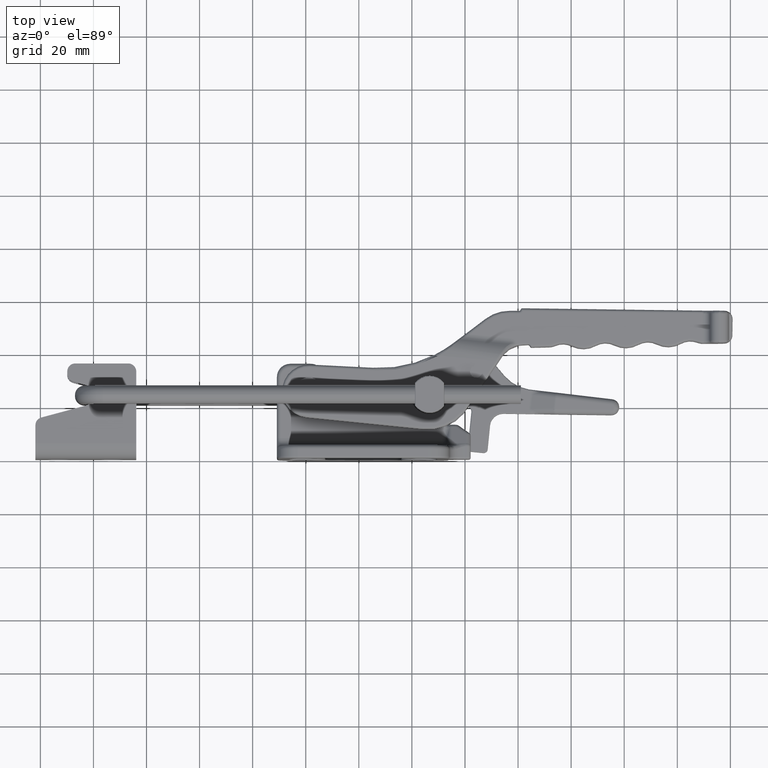
[diagram: clean part render]
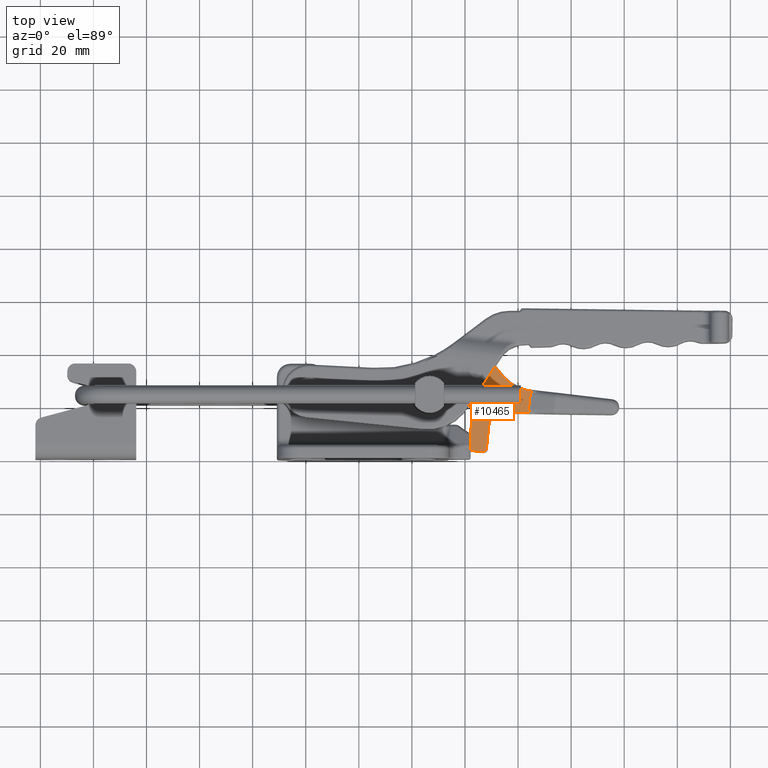
[diagram: same view with one face highlighted and labeled with its STEP entity id]
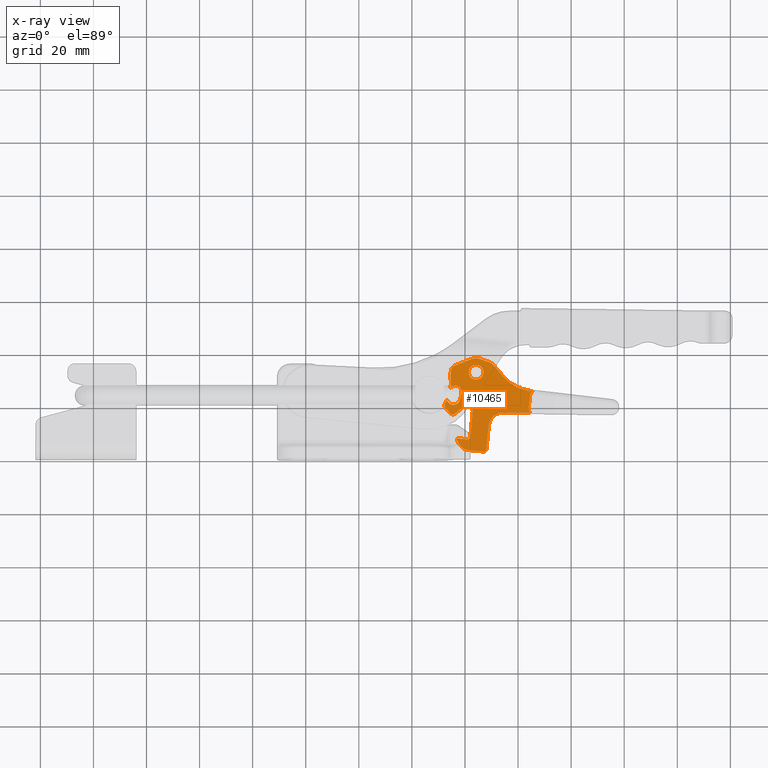
[diagram: x-ray of the same camera — body ghosted, the highlighted face saturated]
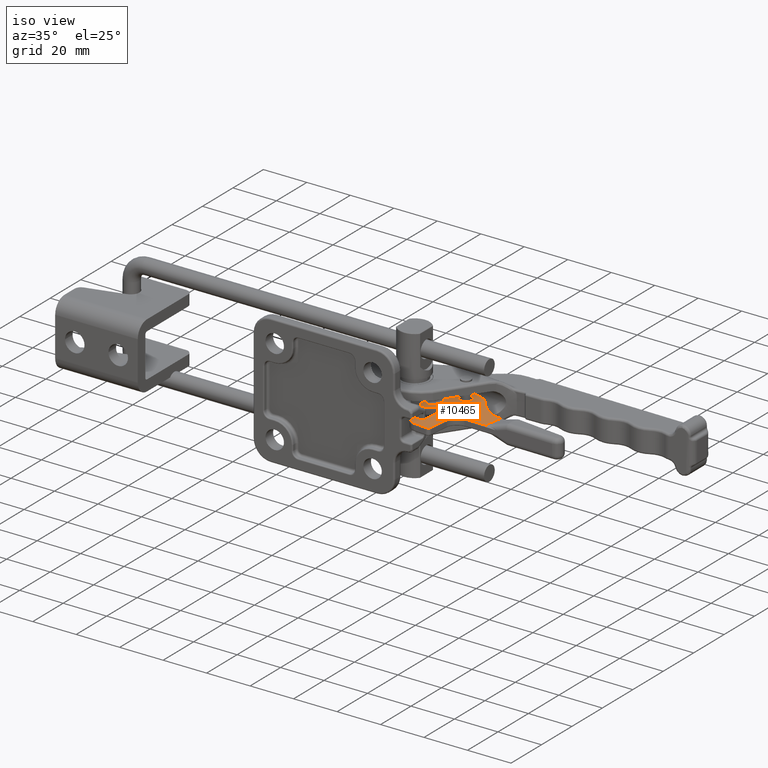
[diagram: same view with one face highlighted and labeled with its STEP entity id]
A machine part, top view. The second image highlights one B-rep face of the part: STEP entity #10465.
The next image is the same camera in x-ray: the body ghosted, the highlighted face saturated — about 0% of this face is hidden behind the body in this view.
A second angle (iso view) of the same face is appended — the face is thin or edge-on in the first view.
In plain terms, the highlighted planar face has unit normal (-0, 0, 1).
Its self-contained STEP definition (entity closure, byte-faithful):
#84=ELLIPSE('',#11455,39.974366171344,7.87577680387984);
#85=ELLIPSE('',#11457,26.0492224874494,6.37568065304871);
#588=FACE_BOUND('',#1887,.T.);
#700=PLANE('',#11454);
#1166=FACE_OUTER_BOUND('',#1886,.T.);
#1886=EDGE_LOOP('',(#7911,#7912,#7913,#7914,#7915,#7916,#7917,#7918,#7919,
#7920,#7921,#7922,#7923,#7924,#7925,#7926,#7927,#7928,#7929,#7930,#7931,
#7932,#7933,#7934,#7935,#7936,#7937,#7938,#7939,#7940,#7941,#7942,#7943,
#7944,#7945,#7946));
#1887=EDGE_LOOP('',(#7947));
#2642=LINE('',#19532,#3172);
#2643=LINE('',#19538,#3173);
#2644=LINE('',#19542,#3174);
#2645=LINE('',#19544,#3175);
#2646=LINE('',#19546,#3176);
#2647=LINE('',#19550,#3177);
#2648=LINE('',#19554,#3178);
#2649=LINE('',#19558,#3179);
#2650=LINE('',#19561,#3180);
#2651=LINE('',#19573,#3181);
#2652=LINE('',#19577,#3182);
#2653=LINE('',#19581,#3183);
#2654=LINE('',#19585,#3184);
#2655=LINE('',#19589,#3185);
#2656=LINE('',#19593,#3186);
#2657=LINE('',#19597,#3187);
#3172=VECTOR('',#13572,10.1783185368678);
#3173=VECTOR('',#13577,5.09127320528675);
#3174=VECTOR('',#13580,0.973094027685159);
#3175=VECTOR('',#13581,0.0559206611037311);
#3176=VECTOR('',#13582,0.671763259292169);
#3177=VECTOR('',#13585,5.45290311228631);
#3178=VECTOR('',#13588,2.68789228955338);
#3179=VECTOR('',#13591,6.43336957121639);
#3180=VECTOR('',#13594,2.12403256004115);
#3181=VECTOR('',#13605,2.51949169181848);
#3182=VECTOR('',#13608,3.99999999893659);
#3183=VECTOR('',#13611,9.1999999998699);
#3184=VECTOR('',#13614,3.36908525550465);
#3185=VECTOR('',#13617,1.50111069974441);
#3186=VECTOR('',#13620,5.78122320873808);
#3187=VECTOR('',#13623,8.99176692437496);
#3761=CIRCLE('',#11451,15.);
#3764=CIRCLE('',#11456,1.56259926742748);
#3765=CIRCLE('',#11458,15.5);
#3766=CIRCLE('',#11459,4.5);
#3767=CIRCLE('',#11460,5.292626146767);
#3768=CIRCLE('',#11461,2.5);
#3769=CIRCLE('',#11462,2.5);
#3770=CIRCLE('',#11463,19.5);
#3771=CIRCLE('',#11464,2.5);
#3772=CIRCLE('',#11465,15.);
#3773=CIRCLE('',#11466,1.5);
#3774=CIRCLE('',#11467,1.5);
#3775=CIRCLE('',#11468,2.15);
#3776=CIRCLE('',#11469,1.3);
#3777=CIRCLE('',#11470,0.2999999999972);
#3778=CIRCLE('',#11471,4.5);
#3779=CIRCLE('',#11472,1.);
#3780=CIRCLE('',#11473,5.5);
#3781=CIRCLE('',#11474,2.75);
#4560=VERTEX_POINT('',#19524);
#4561=VERTEX_POINT('',#19525);
#4562=VERTEX_POINT('',#19530);
#4563=VERTEX_POINT('',#19531);
#4564=VERTEX_POINT('',#19533);
#4565=VERTEX_POINT('',#19535);
#4566=VERTEX_POINT('',#19537);
#4567=VERTEX_POINT('',#19539);
#4568=VERTEX_POINT('',#19541);
#4569=VERTEX_POINT('',#19543);
#4570=VERTEX_POINT('',#19545);
#4571=VERTEX_POINT('',#19547);
#4572=VERTEX_POINT('',#19549);
#4573=VERTEX_POINT('',#19551);
#4574=VERTEX_POINT('',#19553);
#4575=VERTEX_POINT('',#19555);
#4576=VERTEX_POINT('',#19557);
#4577=VERTEX_POINT('',#19559);
#4578=VERTEX_POINT('',#19562);
#4579=VERTEX_POINT('',#19564);
#4580=VERTEX_POINT('',#19566);
#4581=VERTEX_POINT('',#19568);
#4582=VERTEX_POINT('',#19570);
#4583=VERTEX_POINT('',#19572);
#4584=VERTEX_POINT('',#19574);
#4585=VERTEX_POINT('',#19576);
#4586=VERTEX_POINT('',#19578);
#4587=VERTEX_POINT('',#19580);
#4588=VERTEX_POINT('',#19582);
#4589=VERTEX_POINT('',#19584);
#4590=VERTEX_POINT('',#19586);
#4591=VERTEX_POINT('',#19588);
#4592=VERTEX_POINT('',#19590);
#4593=VERTEX_POINT('',#19592);
#4594=VERTEX_POINT('',#19594);
#4595=VERTEX_POINT('',#19596);
#4596=VERTEX_POINT('',#19599);
#5761=EDGE_CURVE('',#4560,#4561,#3761,.T.);
#5764=EDGE_CURVE('',#4562,#4563,#2642,.T.);
#5765=EDGE_CURVE('',#4564,#4563,#84,.T.);
#5766=EDGE_CURVE('',#4564,#4565,#3764,.T.);
#5767=EDGE_CURVE('',#4565,#4566,#2643,.T.);
#5768=EDGE_CURVE('',#4566,#4567,#85,.T.);
#5769=EDGE_CURVE('',#4567,#4568,#2644,.T.);
#5770=EDGE_CURVE('',#4569,#4568,#2645,.T.);
#5771=EDGE_CURVE('',#4569,#4570,#2646,.T.);
#5772=EDGE_CURVE('',#4570,#4571,#3765,.T.);
#5773=EDGE_CURVE('',#4571,#4572,#2647,.T.);
#5774=EDGE_CURVE('',#4572,#4573,#3766,.T.);
#5775=EDGE_CURVE('',#4573,#4574,#2648,.T.);
#5776=EDGE_CURVE('',#4574,#4575,#3767,.T.);
#5777=EDGE_CURVE('',#4575,#4576,#2649,.T.);
#5778=EDGE_CURVE('',#4576,#4577,#3768,.T.);
#5779=EDGE_CURVE('',#4577,#4560,#2650,.T.);
#5780=EDGE_CURVE('',#4561,#4578,#3769,.T.);
#5781=EDGE_CURVE('',#4578,#4579,#3770,.T.);
#5782=EDGE_CURVE('',#4579,#4580,#3771,.T.);
#5783=EDGE_CURVE('',#4580,#4581,#3772,.T.);
#5784=EDGE_CURVE('',#4581,#4582,#3773,.T.);
#5785=EDGE_CURVE('',#4582,#4583,#2651,.T.);
#5786=EDGE_CURVE('',#4583,#4584,#3774,.T.);
#5787=EDGE_CURVE('',#4584,#4585,#2652,.T.);
#5788=EDGE_CURVE('',#4585,#4586,#3775,.T.);
#5789=EDGE_CURVE('',#4586,#4587,#2653,.T.);
#5790=EDGE_CURVE('',#4587,#4588,#3776,.T.);
#5791=EDGE_CURVE('',#4588,#4589,#2654,.T.);
#5792=EDGE_CURVE('',#4589,#4590,#3777,.T.);
#5793=EDGE_CURVE('',#4590,#4591,#2655,.T.);
#5794=EDGE_CURVE('',#4591,#4592,#3778,.T.);
#5795=EDGE_CURVE('',#4592,#4593,#2656,.T.);
#5796=EDGE_CURVE('',#4593,#4594,#3779,.T.);
#5797=EDGE_CURVE('',#4594,#4595,#2657,.T.);
#5798=EDGE_CURVE('',#4595,#4562,#3780,.T.);
#5799=EDGE_CURVE('',#4596,#4596,#3781,.T.);
#7911=ORIENTED_EDGE('',*,*,#5764,.T.);
#7912=ORIENTED_EDGE('',*,*,#5765,.F.);
#7913=ORIENTED_EDGE('',*,*,#5766,.T.);
#7914=ORIENTED_EDGE('',*,*,#5767,.T.);
#7915=ORIENTED_EDGE('',*,*,#5768,.T.);
#7916=ORIENTED_EDGE('',*,*,#5769,.T.);
#7917=ORIENTED_EDGE('',*,*,#5770,.F.);
#7918=ORIENTED_EDGE('',*,*,#5771,.T.);
#7919=ORIENTED_EDGE('',*,*,#5772,.T.);
#7920=ORIENTED_EDGE('',*,*,#5773,.T.);
#7921=ORIENTED_EDGE('',*,*,#5774,.T.);
#7922=ORIENTED_EDGE('',*,*,#5775,.T.);
#7923=ORIENTED_EDGE('',*,*,#5776,.T.);
#7924=ORIENTED_EDGE('',*,*,#5777,.T.);
#7925=ORIENTED_EDGE('',*,*,#5778,.T.);
#7926=ORIENTED_EDGE('',*,*,#5779,.T.);
#7927=ORIENTED_EDGE('',*,*,#5761,.T.);
#7928=ORIENTED_EDGE('',*,*,#5780,.T.);
#7929=ORIENTED_EDGE('',*,*,#5781,.T.);
#7930=ORIENTED_EDGE('',*,*,#5782,.T.);
#7931=ORIENTED_EDGE('',*,*,#5783,.T.);
#7932=ORIENTED_EDGE('',*,*,#5784,.T.);
#7933=ORIENTED_EDGE('',*,*,#5785,.T.);
#7934=ORIENTED_EDGE('',*,*,#5786,.T.);
#7935=ORIENTED_EDGE('',*,*,#5787,.T.);
#7936=ORIENTED_EDGE('',*,*,#5788,.T.);
#7937=ORIENTED_EDGE('',*,*,#5789,.T.);
#7938=ORIENTED_EDGE('',*,*,#5790,.T.);
#7939=ORIENTED_EDGE('',*,*,#5791,.T.);
#7940=ORIENTED_EDGE('',*,*,#5792,.T.);
#7941=ORIENTED_EDGE('',*,*,#5793,.T.);
#7942=ORIENTED_EDGE('',*,*,#5794,.T.);
#7943=ORIENTED_EDGE('',*,*,#5795,.T.);
#7944=ORIENTED_EDGE('',*,*,#5796,.T.);
#7945=ORIENTED_EDGE('',*,*,#5797,.T.);
#7946=ORIENTED_EDGE('',*,*,#5798,.T.);
#7947=ORIENTED_EDGE('',*,*,#5799,.T.);
#10465=ADVANCED_FACE('',(#1166,#588),#700,.T.);
#11451=AXIS2_PLACEMENT_3D('',#19526,#13564,#13565);
#11454=AXIS2_PLACEMENT_3D('',#19529,#13570,#13571);
#11455=AXIS2_PLACEMENT_3D('',#19534,#13573,#13574);
#11456=AXIS2_PLACEMENT_3D('',#19536,#13575,#13576);
#11457=AXIS2_PLACEMENT_3D('',#19540,#13578,#13579);
#11458=AXIS2_PLACEMENT_3D('',#19548,#13583,#13584);
#11459=AXIS2_PLACEMENT_3D('',#19552,#13586,#13587);
#11460=AXIS2_PLACEMENT_3D('',#19556,#13589,#13590);
#11461=AXIS2_PLACEMENT_3D('',#19560,#13592,#13593);
#11462=AXIS2_PLACEMENT_3D('',#19563,#13595,#13596);
#11463=AXIS2_PLACEMENT_3D('',#19565,#13597,#13598);
#11464=AXIS2_PLACEMENT_3D('',#19567,#13599,#13600);
#11465=AXIS2_PLACEMENT_3D('',#19569,#13601,#13602);
#11466=AXIS2_PLACEMENT_3D('',#19571,#13603,#13604);
#11467=AXIS2_PLACEMENT_3D('',#19575,#13606,#13607);
#11468=AXIS2_PLACEMENT_3D('',#19579,#13609,#13610);
#11469=AXIS2_PLACEMENT_3D('',#19583,#13612,#13613);
#11470=AXIS2_PLACEMENT_3D('',#19587,#13615,#13616);
#11471=AXIS2_PLACEMENT_3D('',#19591,#13618,#13619);
#11472=AXIS2_PLACEMENT_3D('',#19595,#13621,#13622);
#11473=AXIS2_PLACEMENT_3D('',#19598,#13624,#13625);
#11474=AXIS2_PLACEMENT_3D('',#19600,#13626,#13627);
#13564=DIRECTION('center_axis',(0.,0.,-1.));
#13565=DIRECTION('ref_axis',(0.879707720341313,0.475514801843107,0.));
#13570=DIRECTION('center_axis',(0.,0.,1.));
#13571=DIRECTION('ref_axis',(1.,0.,0.));
#13572=DIRECTION('',(0.948003284349171,0.31826054242269,0.));
#13573=DIRECTION('center_axis',(1.2674349347077E-10,-6.30655692229449E-10,
1.));
#13574=DIRECTION('ref_axis',(0.939050307520253,0.343779754997466,9.77881428424796E-11));
#13575=DIRECTION('center_axis',(7.40686465576654E-10,-5.54745338529274E-9,
-1.));
#13576=DIRECTION('ref_axis',(-0.975984788574793,-0.217838684513603,4.85551224346663E-10));
#13577=DIRECTION('',(-0.217423751385108,0.976077308584534,0.));
#13578=DIRECTION('center_axis',(-8.6210581440069E-13,-3.32630475610379E-14,
-1.));
#13579=DIRECTION('ref_axis',(0.980198271144691,0.198018557829711,-8.516213295264E-13));
#13580=DIRECTION('',(-0.976077386166946,-0.21742340309521,0.));
#13581=DIRECTION('',(0.976439666253352,0.215790588689689,0.));
#13582=DIRECTION('',(-0.981274404637647,-0.19261501188389,0.));
#13583=DIRECTION('center_axis',(0.,0.,-1.));
#13584=DIRECTION('ref_axis',(0.171320479318197,-0.985215353801484,0.));
#13585=DIRECTION('',(-0.862140394583382,0.506669458352889,0.));
#13586=DIRECTION('center_axis',(0.,0.,1.));
#13587=DIRECTION('ref_axis',(0.506669458351233,0.862140394584356,0.));
#13588=DIRECTION('',(-0.999970212514391,0.00771842496391193,0.));
#13589=DIRECTION('center_axis',(0.,0.,1.));
#13590=DIRECTION('ref_axis',(0.120418282740002,0.992723242994717,0.));
#13591=DIRECTION('',(-0.759750841709198,-0.650214317377098,0.));
#13592=DIRECTION('center_axis',(0.,0.,1.));
#13593=DIRECTION('ref_axis',(-0.650214317379414,0.759750841707216,0.));
#13594=DIRECTION('',(0.234425534599197,-0.972134079604187,0.));
#13595=DIRECTION('center_axis',(0.,0.,-1.));
#13596=DIRECTION('ref_axis',(-0.888989289672102,0.457927988714701,0.));
#13597=DIRECTION('center_axis',(0.,0.,-1.));
#13598=DIRECTION('ref_axis',(0.992527754048323,0.122019086391403,0.));
#13599=DIRECTION('center_axis',(0.,0.,-1.));
#13600=DIRECTION('ref_axis',(0.999948324627296,-0.01016602552936,0.));
#13601=DIRECTION('center_axis',(0.,0.,-1.));
#13602=DIRECTION('ref_axis',(0.994582909897788,-0.103946309887599,0.));
#13603=DIRECTION('center_axis',(0.,0.,1.));
#13604=DIRECTION('ref_axis',(-0.978833748657609,0.204657011824402,0.));
#13605=DIRECTION('',(0.853166485108603,-0.521638714713002,0.));
#13606=DIRECTION('center_axis',(0.,0.,1.));
#13607=DIRECTION('ref_axis',(-0.521638714717786,-0.853166485105678,0.));
#13608=DIRECTION('',(0.521638714712694,0.853166485108791,0.));
#13609=DIRECTION('center_axis',(0.,0.,-1.));
#13610=DIRECTION('ref_axis',(-0.853166485119911,0.521638714694507,0.));
#13611=DIRECTION('',(0.234425534598702,-0.972134079604307,0.));
#13612=DIRECTION('center_axis',(0.,0.,-1.));
#13613=DIRECTION('ref_axis',(0.972134079599462,0.234425534618791,0.));
#13614=DIRECTION('',(-0.972134079604307,-0.234425534598702,3.78962353780303E-14));
#13615=DIRECTION('center_axis',(-1.364242052659E-12,-1.136868377216E-12,
1.));
#13616=DIRECTION('ref_axis',(-0.234425534589789,0.972134079606456,7.85375321014104E-13));
#13617=DIRECTION('',(0.689085508059713,-0.724680041523214,8.52020390272317E-14));
#13618=DIRECTION('center_axis',(0.,0.,1.));
#13619=DIRECTION('ref_axis',(-0.72468004151829,-0.689085508064891,0.));
#13620=DIRECTION('',(0.972134079604307,0.234425534598702,0.));
#13621=DIRECTION('center_axis',(0.,0.,1.));
#13622=DIRECTION('ref_axis',(0.234425534587903,-0.972134079606911,0.));
#13623=DIRECTION('',(-0.234425534598513,0.972134079604352,0.));
#13624=DIRECTION('center_axis',(0.,0.,-1.));
#13625=DIRECTION('ref_axis',(-0.972134079607684,-0.234425534584696,0.));
#13626=DIRECTION('center_axis',(0.,0.,-1.));
#13627=DIRECTION('ref_axis',(1.,0.,0.));
#19524=CARTESIAN_POINT('',(1477.48840524,854.6656065717,1.5));
#19525=CARTESIAN_POINT('',(1478.94328803,850.7520289845,1.5));
#19526=CARTESIAN_POINT('Origin',(1464.292789435,847.5328845441,1.5));
#19529=CARTESIAN_POINT('Origin',(1520.260239308,854.4859619466,1.5));
#19530=CARTESIAN_POINT('',(1500.855813881,848.4989964416,1.5));
#19531=CARTESIAN_POINT('',(1510.504893283,851.7383536204,1.5));
#19532=CARTESIAN_POINT('',(1500.855813881,848.4989964416,1.5));
#19533=CARTESIAN_POINT('',(1509.317888299,852.9221292131,1.500000000897));
#19534=CARTESIAN_POINT('Origin',(1546.87025981285,866.623302774838,1.5000000047782));
#19535=CARTESIAN_POINT('',(1509.274505044,853.0780325663,1.5));
#19536=CARTESIAN_POINT('Origin',(1510.79957815965,853.418427135138,1.49999999924128));
#19537=CARTESIAN_POINT('',(1508.167541324,858.0475088137,1.5));
#19538=CARTESIAN_POINT('',(1509.274505044,853.0780325663,1.5));
#19539=CARTESIAN_POINT('',(1508.56841164,859.6735672355,1.5));
#19540=CARTESIAN_POINT('Origin',(1533.69456466062,863.235790031113,1.49999999997816));
#19541=CARTESIAN_POINT('',(1507.618596565,859.4619938203,1.5));
#19542=CARTESIAN_POINT('',(1508.56841164,859.6735672355,1.5));
#19543=CARTESIAN_POINT('',(1507.56399341333,859.449926667943,1.5));
#19544=CARTESIAN_POINT('',(1507.563993416,859.4499266685,1.5));
#19545=CARTESIAN_POINT('',(1506.90480932221,859.320534973663,1.5));
#19546=CARTESIAN_POINT('',(1507.563993416,859.4499266685,1.5));
#19547=CARTESIAN_POINT('',(1496.395965288,861.2281968351,1.5));
#19548=CARTESIAN_POINT('Origin',(1504.249341892,874.5913729511,1.5));
#19549=CARTESIAN_POINT('',(1491.694797247,863.9910163012,1.5));
#19550=CARTESIAN_POINT('',(1496.395965288,861.2281968351,1.5));
#19551=CARTESIAN_POINT('',(1489.449517597,864.6112504818,1.5));
#19552=CARTESIAN_POINT('Origin',(1489.414784685,860.1113845255,1.5));
#19553=CARTESIAN_POINT('',(1486.761705373,864.6319967768,1.5));
#19554=CARTESIAN_POINT('',(1489.449517597,864.6112504818,1.5));
#19555=CARTESIAN_POINT('',(1482.683035124,863.3989609543,1.5));
#19556=CARTESIAN_POINT('Origin',(1486.124376421,859.3778837844,1.5));
#19557=CARTESIAN_POINT('',(1477.795277177,859.2158919504,1.5));
#19558=CARTESIAN_POINT('',(1482.683035124,863.3989609543,1.5));
#19559=CARTESIAN_POINT('',(1476.990477772,856.7304510096,1.5));
#19560=CARTESIAN_POINT('Origin',(1479.420812971,857.3165148461,1.5));
#19561=CARTESIAN_POINT('',(1476.990477772,856.7304510096,1.5));
#19562=CARTESIAN_POINT('',(1483.647080639,849.9122567287,1.5));
#19563=CARTESIAN_POINT('Origin',(1481.165761254,849.6072090127,1.5));
#19564=CARTESIAN_POINT('',(1483.791781765,847.3346470464,1.5));
#19565=CARTESIAN_POINT('Origin',(1464.292789435,847.5328845441,1.5));
#19566=CARTESIAN_POINT('',(1479.211533084,845.9736898957,1.5));
#19567=CARTESIAN_POINT('Origin',(1481.291910954,847.3600621103,1.5));
#19568=CARTESIAN_POINT('',(1478.975295665,844.4630293684,1.5));
#19569=CARTESIAN_POINT('Origin',(1464.292789435,847.5328845441,1.5));
#19570=CARTESIAN_POINT('',(1479.661088216,842.876294123,1.5));
#19571=CARTESIAN_POINT('Origin',(1480.443546288,844.1560438507,1.5));
#19572=CARTESIAN_POINT('',(1481.810634087,841.5620297152,1.5));
#19573=CARTESIAN_POINT('',(1479.661088216,842.876294123,1.5));
#19574=CARTESIAN_POINT('',(1483.87284188756,842.059321371759,1.5));
#19575=CARTESIAN_POINT('Origin',(1482.593092159,842.8417794429,1.5));
#19576=CARTESIAN_POINT('',(1485.959396746,845.4719873112,1.5));
#19577=CARTESIAN_POINT('',(1483.873475402,842.0603575161,1.5));
#19578=CARTESIAN_POINT('',(1489.88379296,844.854478974,1.5));
#19579=CARTESIAN_POINT('Origin',(1487.793704689,844.3504640746,1.5));
#19580=CARTESIAN_POINT('',(1492.040507878,835.9108454417,1.5));
#19581=CARTESIAN_POINT('',(1489.88379296,844.854478974,1.5));
#19582=CARTESIAN_POINT('',(1491.08148677,834.3423179432,1.5));
#19583=CARTESIAN_POINT('Origin',(1490.776733575,835.6060922467,1.5));
#19584=CARTESIAN_POINT('',(1487.806284176,833.5525183312,1.5));
#19585=CARTESIAN_POINT('',(1491.08148677,834.3423179432,1.5));
#19586=CARTESIAN_POINT('',(1487.659207824,833.0541524549,1.5));
#19587=CARTESIAN_POINT('Origin',(1487.876611837,833.2608781073,1.5));
#19588=CARTESIAN_POINT('',(1488.693601453,831.9663274905,1.5));
#19589=CARTESIAN_POINT('',(1487.659207824,833.0541524549,1.5));
#19590=CARTESIAN_POINT('',(1493.009576546,830.6926089186,1.5));
#19591=CARTESIAN_POINT('Origin',(1491.95466164,835.0672122768,1.5));
#19592=CARTESIAN_POINT('',(1498.629700649,832.04787526,1.5));
#19593=CARTESIAN_POINT('',(1493.009576546,830.6926089186,1.5));
#19594=CARTESIAN_POINT('',(1499.367409194,833.2544348743,1.5));
#19595=CARTESIAN_POINT('Origin',(1498.395275115,833.0200093396,1.5));
#19596=CARTESIAN_POINT('',(1497.259509426,841.9956379374,1.5));
#19597=CARTESIAN_POINT('',(1499.367409194,833.2544348743,1.5));
#19598=CARTESIAN_POINT('Origin',(1502.606246864,843.2849783777,1.5));
#19599=CARTESIAN_POINT('',(1483.374376421,859.3778837844,1.5));
#19600=CARTESIAN_POINT('Origin',(1486.124376421,859.3778837844,1.5));